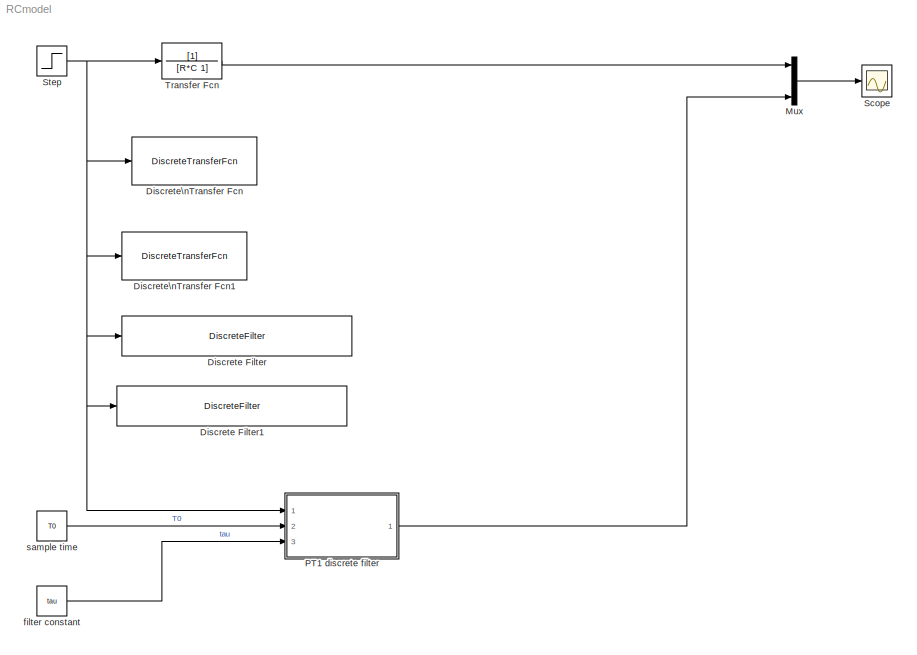
MODEL RCmodel
KIND model
CONFIG InitFcn = init;
BLOCK [DiscreteFilter] Discrete Filter
  Denominator = [(2*tau+T0) (T0-2*tau)]
  Numerator = [T0 T0]
  SampleTime = T0
BLOCK [DiscreteFilter] Discrete Filter1
  Denominator = [tau -(tau-T0)]
  Numerator = [0 T0]
  SampleTime = T0
BLOCK [DiscreteTransferFcn] Discrete\nTransfer Fcn
  Denominator = [(2*tau+T0) (T0-2*tau)]
  Numerator = [T0 T0]
  SampleTime = T0
BLOCK [DiscreteTransferFcn] Discrete\nTransfer Fcn1
  Denominator = [tau -(tau-T0)]
  Numerator = [T0]
  SampleTime = T0
BLOCK [Mux] Mux
  DisplayOption = bar
  Inputs = 5
  Ports = [5, 1]
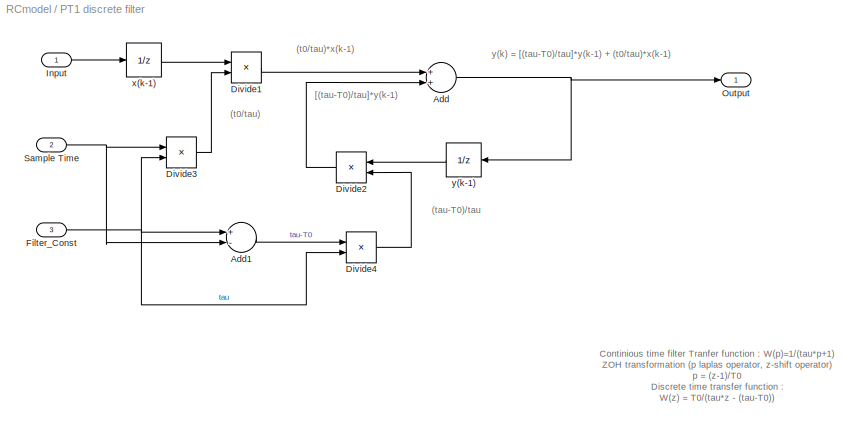
BLOCK [SubSystem] PT1 discrete filter
  FunctionWithSeparateData = off
  MinAlgLoopOccurrences = off
  Ports = [3, 1]
  RTWSystemCode = Auto
BLOCK [Sum] PT1 discrete filter/Add
  CollapseMode = All dimensions
  InputSameDT = off
  OutDataType = sfix(16)
  OutDataTypeMode = Inherit via internal rule
  OutScaling = 2^-10
  Ports = [2, 1]
  SaturateOnIntegerOverflow = off
BLOCK [Sum] PT1 discrete filter/Add1
  CollapseMode = All dimensions
  InputSameDT = off
  Inputs = +-
  OutDataType = sfix(16)
  OutDataTypeMode = Inherit via internal rule
  OutScaling = 2^-10
  Ports = [2, 1]
  SaturateOnIntegerOverflow = off
BLOCK [Product] PT1 discrete filter/Divide1
  CollapseMode = All dimensions
  InputSameDT = off
  Inputs = **
  OutDataType = sfix(16)
  OutDataTypeMode = Inherit via internal rule
  OutScaling = 2^-10
  Ports = [2, 1]
  RndMeth = Floor
  SaturateOnIntegerOverflow = off
BLOCK [Product] PT1 discrete filter/Divide2
  CollapseMode = All dimensions
  InputSameDT = off
  Inputs = **
  OutDataType = sfix(16)
  OutDataTypeMode = Inherit via internal rule
  OutScaling = 2^-10
  Ports = [2, 1]
  RndMeth = Floor
  SaturateOnIntegerOverflow = off
BLOCK [Product] PT1 discrete filter/Divide3
  CollapseMode = All dimensions
  InputSameDT = off
  Inputs = */
  OutDataType = sfix(16)
  OutDataTypeMode = Inherit via internal rule
  OutScaling = 2^-10
  Ports = [2, 1]
  RndMeth = Floor
  SaturateOnIntegerOverflow = off
BLOCK [Product] PT1 discrete filter/Divide4
  CollapseMode = All dimensions
  InputSameDT = off
  Inputs = */
  OutDataType = sfix(16)
  OutDataTypeMode = Inherit via internal rule
  OutScaling = 2^-10
  Ports = [2, 1]
  RndMeth = Floor
  SaturateOnIntegerOverflow = off
BLOCK [Inport] PT1 discrete filter/Filter_Const
  IconDisplay = Port number
  Port = 3
BLOCK [Inport] PT1 discrete filter/Input
  IconDisplay = Port number
BLOCK [Outport] PT1 discrete filter/Output
  IconDisplay = Port number
BLOCK [Inport] PT1 discrete filter/Sample Time
  IconDisplay = Port number
  Port = 2
BLOCK [UnitDelay] PT1 discrete filter/x(k-1)
  SampleTime = -1
BLOCK [UnitDelay] PT1 discrete filter/y(k-1)
  SampleTime = -1
BLOCK [Scope] Scope
  DataFormat = StructureWithTime
  Floating = off
  NumInputPorts = 1
  Ports = [1]
  SampleTime = 0
BLOCK [Step] Step
  After = 100
  Time = 0
BLOCK [TransferFcn] Transfer Fcn
  Denominator = [R*C 1]
BLOCK [Constant] filter constant
  OutDataType = sfix(16)
  OutScaling = 2^0
  Value = tau
BLOCK [Constant] sample time
  OutDataType = sfix(16)
  OutScaling = 2^0
  Value = T0
ANNOTATION PT1 discrete filter: (t0/tau)
ANNOTATION PT1 discrete filter: (t0/tau)*x(k-1)
ANNOTATION PT1 discrete filter: (tau-T0)/tau
ANNOTATION PT1 discrete filter: [(tau-T0)/tau]*y(k-1)
ANNOTATION PT1 discrete filter: \nContinious time filter Tranfer function : W(p)=1/(tau*p+1)\nZOH transformation (p laplas operator, z-shift operator)\np = (z-1)/T0 \nDiscrete time transfer function : \nW(z) = T0/(tau*z - (tau-T0)) \nor: W(z^-1) = (T0*z^-1) / [tau-(tau-T0)*z^-1] \nDiference equation equivalent \n y(k) = (T0/tau) * x(k-1) +[(tau-T0)/tau]*y(k-1)\ny(k)- filter output\nx(k) - filter input\nT0 - sample time\ntau - fi...<+72ch>
ANNOTATION PT1 discrete filter: y(k) = [(tau-T0)/tau]*y(k-1) + (t0/tau)*x(k-1)
LINE Mux:1 -> Scope:1
LINE PT1 discrete filter/Add1:1 -> PT1 discrete filter/Divide4:1
NET PT1 discrete filter/Add:1 -> PT1 discrete filter/Output:1, PT1 discrete filter/y(k-1):1
LINE PT1 discrete filter/Divide1:1 -> PT1 discrete filter/Add:1
LINE PT1 discrete filter/Divide2:1 -> PT1 discrete filter/Add:2
LINE PT1 discrete filter/Divide3:1 -> PT1 discrete filter/Divide1:2
LINE PT1 discrete filter/Divide4:1 -> PT1 discrete filter/Divide2:2
NET PT1 discrete filter/Filter_Const:1 -> PT1 discrete filter/Add1:1, PT1 discrete filter/Divide3:2, PT1 discrete filter/Divide4:2
LINE PT1 discrete filter/Input:1 -> PT1 discrete filter/x(k-1):1
NET PT1 discrete filter/Sample Time:1 -> PT1 discrete filter/Add1:2, PT1 discrete filter/Divide3:1
LINE PT1 discrete filter/x(k-1):1 -> PT1 discrete filter/Divide1:1
LINE PT1 discrete filter/y(k-1):1 -> PT1 discrete filter/Divide2:1
LINE PT1 discrete filter:1 -> Mux:5
NET Step:1 -> Discrete Filter1:1, Discrete Filter:1, Discrete\nTransfer Fcn1:1, Discrete\nTransfer Fcn:1, PT1 discrete filter:1, Transfer Fcn:1
LINE Transfer Fcn:1 -> Mux:1
LINE filter constant:1 -> PT1 discrete filter:3
LINE sample time:1 -> PT1 discrete filter:2
note: NET lines group one-source signal fan-out (src -> all destinations, sorted); 1:1 wires keep LINE
